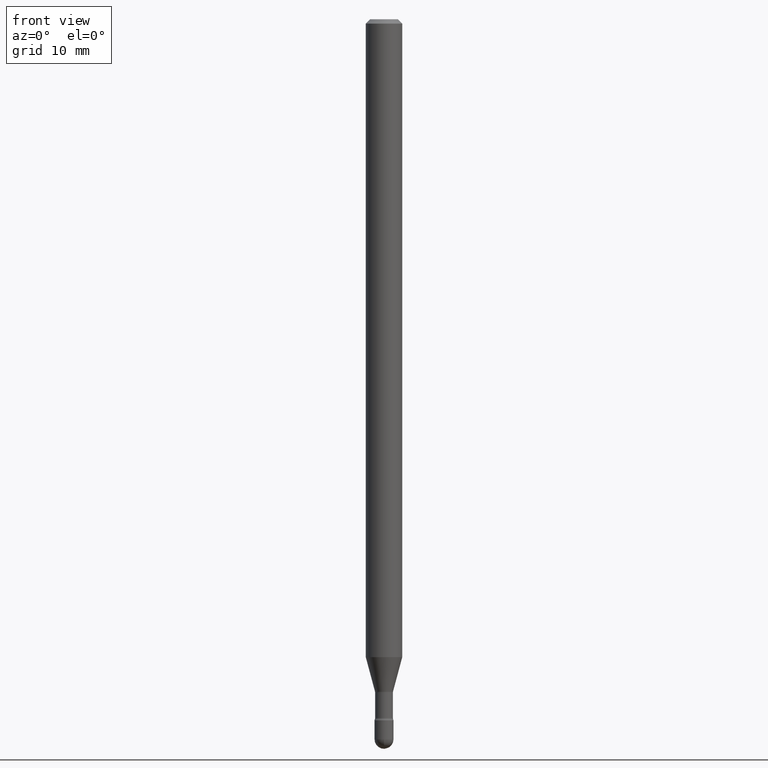
[diagram: clean part render]
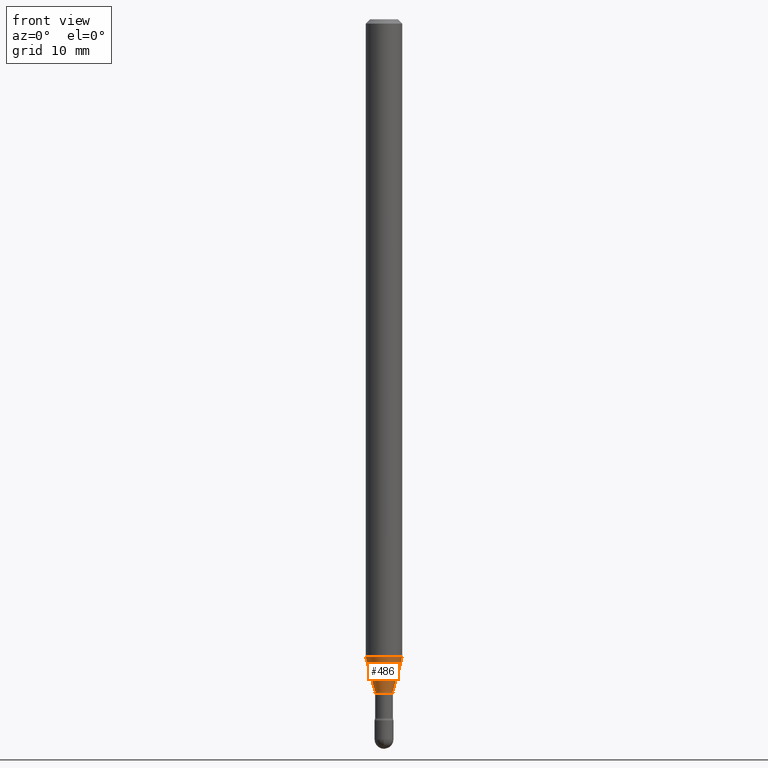
[diagram: same view with one face highlighted and labeled with its STEP entity id]
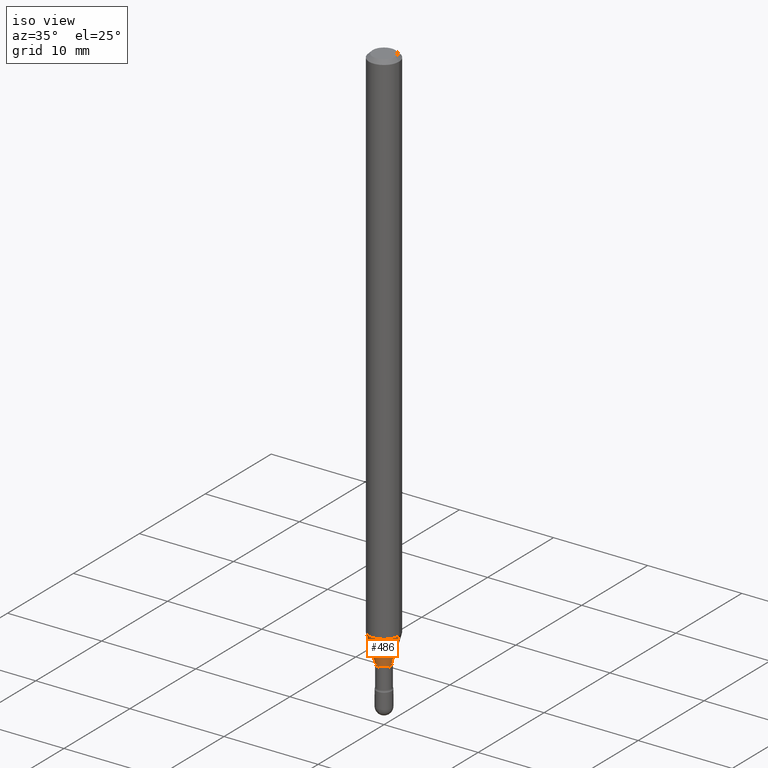
[diagram: same view with one face highlighted and labeled with its STEP entity id]
A machine part, front view. The second image highlights one B-rep face of the part: STEP entity #486.
A second angle (iso view) of the same face is appended — the face is thin or edge-on in the first view.
In plain terms, the highlighted conical surface has half-angle 15 deg.
Its self-contained STEP definition (entity closure, byte-faithful):
#10 = EDGE_CURVE ( 'NONE', #526, #367, #224, .T. ) ;
#21 = VECTOR ( 'NONE', #127, 39.37007874015748143 ) ;
#28 = CARTESIAN_POINT ( 'NONE',  ( 0.03106111260566398607, -8.258103081672599750E-15, -2.303092501787273427 ) ) ;
#49 = EDGE_CURVE ( 'NONE', #352, #526, #387, .T. ) ;
#74 = CARTESIAN_POINT ( 'NONE',  ( -0.06250000000000000000, -7.187454451463180448E-15, -2.185760976698174485 ) ) ;
#76 = DIRECTION ( 'NONE',  ( -2.445468806185136597E-29, 3.491481338843145583E-15, 1.000000000000000000 ) ) ;
#79 = DIRECTION ( 'NONE',  ( 1.000000000000000000, -6.982962677686262766E-15, 0.000000000000000000 ) ) ;
#105 = AXIS2_PLACEMENT_3D ( 'NONE', #167, #76, #79 ) ;
#118 = DIRECTION ( 'NONE',  ( 1.000000000000000000, -6.982962677686264344E-15, 0.000000000000000000 ) ) ;
#120 = CARTESIAN_POINT ( 'NONE',  ( 0.06250000000000000000, -8.067978828668636311E-15, -2.185760976698174485 ) ) ;
#127 = DIRECTION ( 'NONE',  ( -0.2588190451025210725, 5.211531920934548675E-15, 0.9659258262890682012 ) ) ;
#142 = AXIS2_PLACEMENT_3D ( 'NONE', #459, #413, #527 ) ;
#167 = CARTESIAN_POINT ( 'NONE',  ( 5.345210286292143874E-29, -7.631543661313244641E-15, -2.185760976698174485 ) ) ;
#183 = CARTESIAN_POINT ( 'NONE',  ( 0.03106111260566398607, -8.258103081672599750E-15, -2.303092501787273427 ) ) ;
#200 = ORIENTED_EDGE ( 'NONE', *, *, #403, .F. ) ;
#202 = CARTESIAN_POINT ( 'NONE',  ( -0.03106111260566398607, -7.503978231908604421E-15, -2.303092501787273427 ) ) ;
#222 = LINE ( 'NONE', #518, #21 ) ;
#224 = LINE ( 'NONE', #183, #366 ) ;
#241 = AXIS2_PLACEMENT_3D ( 'NONE', #553, #457, #118 ) ;
#298 = FACE_OUTER_BOUND ( 'NONE', #346, .T. ) ;
#346 = EDGE_LOOP ( 'NONE', ( #473, #355, #357, #200 ) ) ;
#352 = VERTEX_POINT ( 'NONE', #202 ) ;
#355 = ORIENTED_EDGE ( 'NONE', *, *, #49, .T. ) ;
#357 = ORIENTED_EDGE ( 'NONE', *, *, #10, .T. ) ;
#366 = VECTOR ( 'NONE', #380, 39.37007874015748143 ) ;
#367 = VERTEX_POINT ( 'NONE', #120 ) ;
#380 = DIRECTION ( 'NONE',  ( 0.2588190451025210725, 1.565188264969624137E-15, 0.9659258262890682012 ) ) ;
#387 = CIRCLE ( 'NONE', #142, 0.03106111260566398607 ) ;
#389 = CIRCLE ( 'NONE', #105, 0.06250000000000000000 ) ;
#403 = EDGE_CURVE ( 'NONE', #524, #367, #389, .T. ) ;
#413 = DIRECTION ( 'NONE',  ( -2.445468806185136597E-29, 3.491481338843145583E-15, 1.000000000000000000 ) ) ;
#419 = CONICAL_SURFACE ( 'NONE', #241, 0.03106111260566398607, 0.2617993877991497409 ) ;
#436 = EDGE_CURVE ( 'NONE', #352, #524, #222, .T. ) ;
#457 = DIRECTION ( 'NONE',  ( -2.445468806185136597E-29, 3.491481338843145583E-15, 1.000000000000000000 ) ) ;
#459 = CARTESIAN_POINT ( 'NONE',  ( 5.632140870879662912E-29, -8.041204491619838078E-15, -2.303092501787273427 ) ) ;
#473 = ORIENTED_EDGE ( 'NONE', *, *, #436, .F. ) ;
#486 = ADVANCED_FACE ( 'NONE', ( #298 ), #419, .T. ) ;
#518 = CARTESIAN_POINT ( 'NONE',  ( -0.03106111260566398607, -7.820502012354026816E-15, -2.303092501787273427 ) ) ;
#524 = VERTEX_POINT ( 'NONE', #74 ) ;
#526 = VERTEX_POINT ( 'NONE', #28 ) ;
#527 = DIRECTION ( 'NONE',  ( 1.000000000000000000, -6.982962677686264344E-15, 0.000000000000000000 ) ) ;
#553 = CARTESIAN_POINT ( 'NONE',  ( 5.632140870879662912E-29, -8.041204491619838078E-15, -2.303092501787273427 ) ) ;